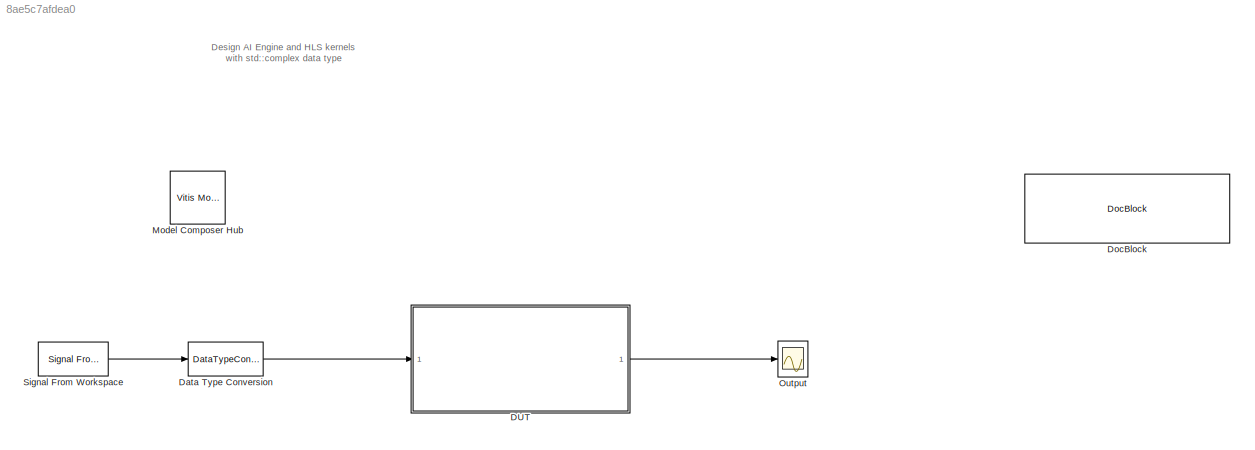
MODEL slx_8ae5c7afdea0
KIND model
CONFIG AbsTol = auto
CONFIG EnableMultiTasking = off
CONFIG FixedStep = auto
CONFIG InitFcn = xmcCheckSlxPath(bdroot);\ninput = readcomplexdata('./sw/input.h');
CONFIG MaxStep = auto
CONFIG MinStep = auto
CONFIG RelTol = 1e-3
CONFIG SampleTimeConstraint = Unconstrained
CONFIG SolverName = VariableStepAuto
CONFIG StartTime = 0.0
CONFIG StopTime = 4000
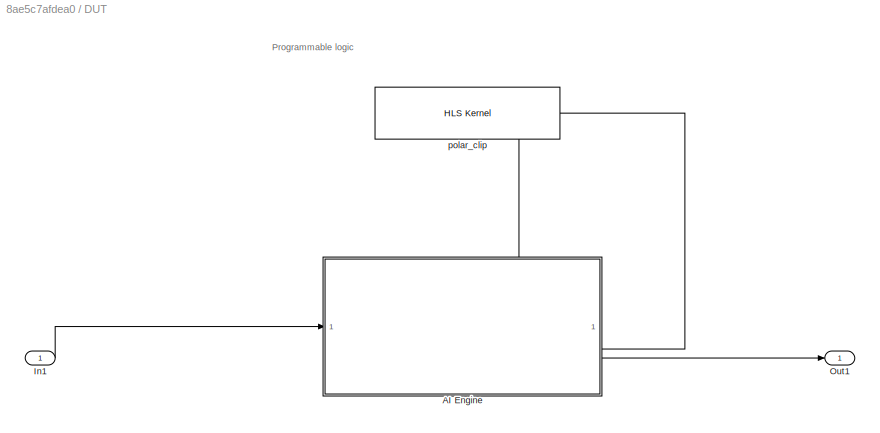
BLOCK [SubSystem] DUT
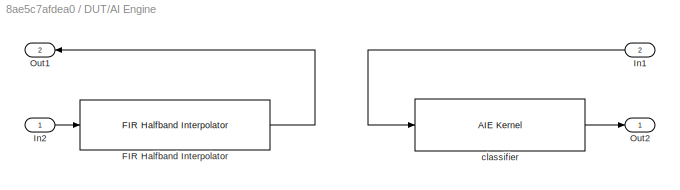
BLOCK [SubSystem] DUT/AI Engine
  PortSchema = {"entries":[{"content":{"sides":[{"content":{"connectorIds":["Out2","In1"]},"type":"ConnectorPlacement.EquallySpacedRectSide","uuid":"4c582470-6e07-4cf2-89ba-1d9148c6c342"},{"content":{"connectorIds":["In2","Out1"],"side":"RIGHT"},"type":"ConnectorPlacement.EquallySpacedRectSide","uuid":"202127b6-913d-45d6-97d3-63d531af815e"},{"content":{"connectorIds":[],"side":"TOP"},"type":"ConnectorPlacement.E...<+255ch>
BLOCK [Reference] DUT/AI Engine/FIR Halfband Interpolator  REF=aieDSP/FIR Halfband Interpolator
  SourceBlock = aieDSP/FIR Halfband Interpolator
  SourceType = FIR Halfband Interpolator
BLOCK [Inport] DUT/AI Engine/In1
  NameLocation = top
  Port = 2
BLOCK [Inport] DUT/AI Engine/In2
BLOCK [Outport] DUT/AI Engine/Out1
  NameLocation = top
  Port = 2
  VectorParamsAs1DForOutWhenUnconnected = off
BLOCK [Outport] DUT/AI Engine/Out2
  VectorParamsAs1DForOutWhenUnconnected = off
BLOCK [Reference] DUT/AI Engine/classifier  REF=aieBasic/AIE Kernel
  SourceBlock = aieBasic/AIE Kernel
  SourceType = AIE Kernel Function
BLOCK [Inport] DUT/In1
BLOCK [Outport] DUT/Out1
BLOCK [Reference] DUT/polar_clip  REF=hlsBasic/HLS Kernel
  SourceBlock = hlsBasic/HLS Kernel
  SourceType = HLS Kernel Function
BLOCK [DataTypeConversion] Data Type Conversion
  OutDataTypeStr = int16
  RndMeth = Floor
  SaturateOnIntegerOverflow = off
BLOCK [Reference] DocBlock  REF=simulink/Model-Wide
Utilities/DocBlock
  SourceBlock = simulink/Model-Wide\nUtilities/DocBlock
  SourceType = DocBlock
  UserDataPersistent = on
BLOCK [Reference] Model Composer Hub  REF=vmcUtilities/Vitis Model Composer Hub
  SourceBlock = vmcUtilities/Vitis Model Composer Hub
  SourceType = VMC Hub
  Tag = genX
  UserDataPersistent = on
BLOCK [Scope] Output
  Floating = off
  NumInputPorts = 1
  ScopeSpecificationString = Simulink.scopes.TimeScopeBlockCfg('CurrentConfiguration', extmgr.ConfigurationSet(extmgr.Configuration('Core','General UI',true,'DisplayFullSourceName',false,'ShowMainToolbar',true),extmgr.Configuration('Sources','WiredSimulink',true,'DataLogging',false,'DataLoggingVariableName','ScopeData','DataLoggingLimitDataPoints',false,'DataLoggingMaxPoints','5000','DataLoggingDecimateData',false,'DataLoggin...<+1992ch>
BLOCK [Reference] Signal From Workspace  REF=dspsrcs4/Signal From
Workspace
  SourceBlock = dspsrcs4/Signal From\nWorkspace
  SourceType = Signal From Workspace
ANNOTATION (root): Design AI Engine and HLS kernels with std::complex data type
ANNOTATION DUT: Programmable logic
LINE DUT/AI Engine/FIR Halfband Interpolator:1 -> DUT/AI Engine/Out1:1
LINE DUT/AI Engine/In1:1 -> DUT/AI Engine/classifier:1
LINE DUT/AI Engine/In2:1 -> DUT/AI Engine/FIR Halfband Interpolator:1
LINE DUT/AI Engine/classifier:1 -> DUT/AI Engine/Out2:1
LINE DUT/AI Engine:1 -> DUT/Out1:1
LINE DUT/AI Engine:2 -> DUT/polar_clip:1
LINE DUT/In1:1 -> DUT/AI Engine:1
LINE DUT/polar_clip:1 -> DUT/AI Engine:2
LINE DUT:1 -> Output:1
LINE Data Type Conversion:1 -> DUT:1
LINE Signal From Workspace:1 -> Data Type Conversion:1
